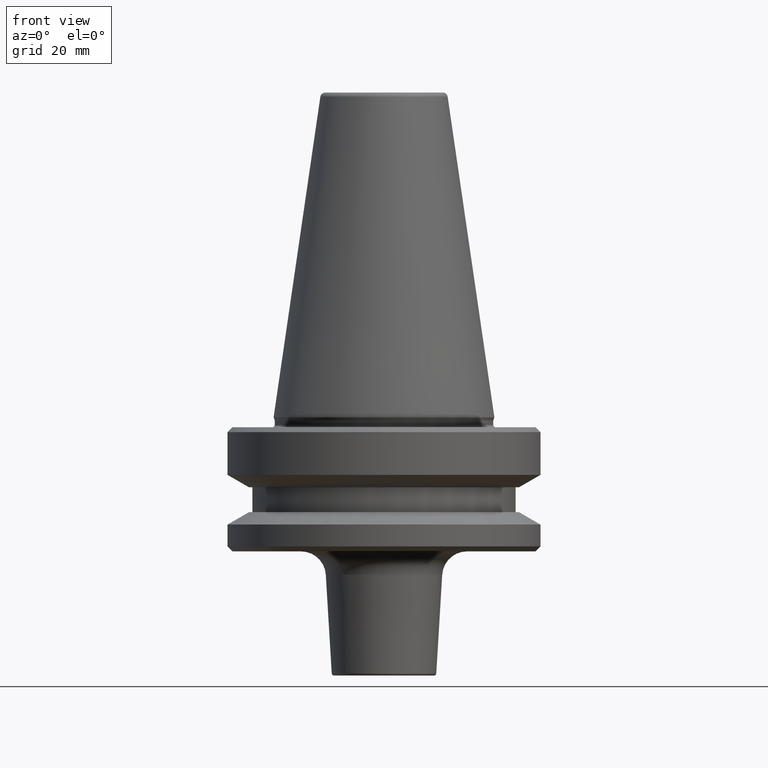
[diagram: clean part render]
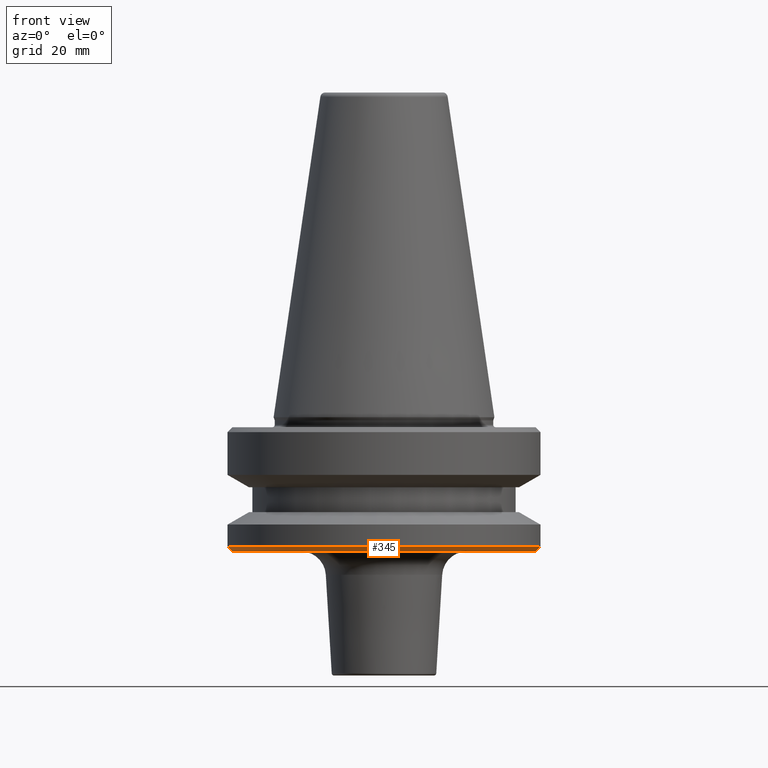
[diagram: same view with one face highlighted and labeled with its STEP entity id]
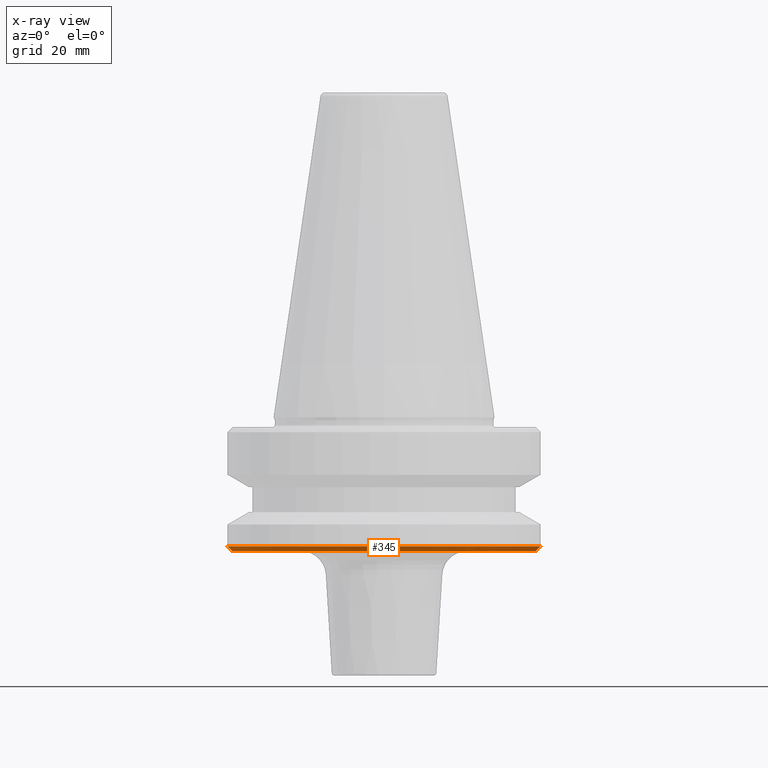
[diagram: x-ray of the same camera — body ghosted, the highlighted face saturated]
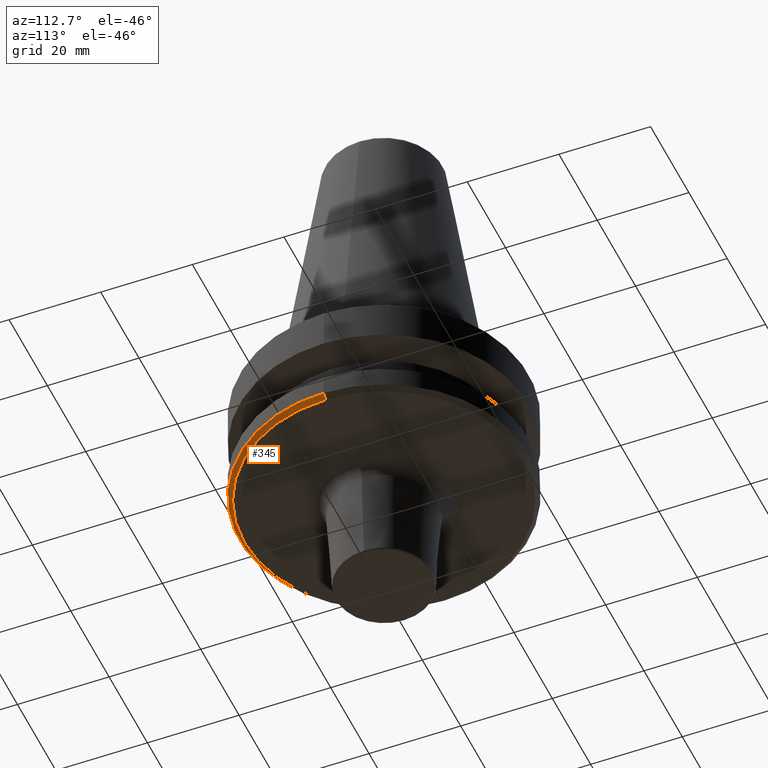
[diagram: same view with one face highlighted and labeled with its STEP entity id]
A machine part, front view. The second image highlights one B-rep face of the part: STEP entity #345.
The next image is the same camera in x-ray: the body ghosted, the highlighted face saturated — about 0% of this face is hidden behind the body in this view.
A second angle (auxiliary view) of the same face is appended — the face is thin or edge-on in the first view.
In plain terms, the highlighted conical surface has half-angle 45 deg.
Its self-contained STEP definition (entity closure, byte-faithful):
#21 = ORIENTED_EDGE ( 'NONE', *, *, #177, .F. ) ;
#106 = EDGE_LOOP ( 'NONE', ( #21, #264, #392, #667 ) ) ;
#128 = CARTESIAN_POINT ( 'NONE',  ( 31.50000000000008500, 0.0000000000000000000, -91.40000000000037500 ) ) ;
#129 = CARTESIAN_POINT ( 'NONE',  ( 31.50000000000008500, 0.0000000000000000000, -91.40000000000037500 ) ) ;
#177 = EDGE_CURVE ( 'NONE', #550, #1015, #981, .T. ) ;
#183 = AXIS2_PLACEMENT_3D ( 'NONE', #769, #689, #291 ) ;
#263 = VERTEX_POINT ( 'NONE', #129 ) ;
#264 = ORIENTED_EDGE ( 'NONE', *, *, #944, .T. ) ;
#291 = DIRECTION ( 'NONE',  ( 1.000000000000000000, 0.0000000000000000000, 0.0000000000000000000 ) ) ;
#345 = ADVANCED_FACE ( 'NONE', ( #1021 ), #486, .T. ) ;
#392 = ORIENTED_EDGE ( 'NONE', *, *, #1018, .T. ) ;
#422 = DIRECTION ( 'NONE',  ( 1.000000000000000000, 0.0000000000000000000, 0.0000000000000000000 ) ) ;
#423 = VECTOR ( 'NONE', #640, 1000.000000000000000 ) ;
#451 = DIRECTION ( 'NONE',  ( -0.0000000000000000000, -0.0000000000000000000, 1.000000000000000000 ) ) ;
#466 = VERTEX_POINT ( 'NONE', #945 ) ;
#486 = CONICAL_SURFACE ( 'NONE', #808, 31.50000000000008500, 0.7853981633974500600 ) ;
#505 = DIRECTION ( 'NONE',  ( -0.0000000000000000000, -0.0000000000000000000, 1.000000000000000000 ) ) ;
#516 = CIRCLE ( 'NONE', #719, 30.49999999999241900 ) ;
#550 = VERTEX_POINT ( 'NONE', #1024 ) ;
#640 = DIRECTION ( 'NONE',  ( 0.7071067811865487900, 0.0000000000000000000, 0.7071067811865463500 ) ) ;
#667 = ORIENTED_EDGE ( 'NONE', *, *, #802, .F. ) ;
#689 = DIRECTION ( 'NONE',  ( -0.0000000000000000000, -0.0000000000000000000, 1.000000000000000000 ) ) ;
#716 = DIRECTION ( 'NONE',  ( -0.7071067811865487900, 8.659560562354948900E-017, 0.7071067811865463500 ) ) ;
#719 = AXIS2_PLACEMENT_3D ( 'NONE', #970, #451, #422 ) ;
#769 = CARTESIAN_POINT ( 'NONE',  ( 0.0000000000000000000, 0.0000000000000000000, -91.40000000000037500 ) ) ;
#773 = VECTOR ( 'NONE', #716, 1000.000000000000000 ) ;
#785 = CARTESIAN_POINT ( 'NONE',  ( -31.50000000000008500, 3.857637417314172900E-015, -91.40000000000037500 ) ) ;
#802 = EDGE_CURVE ( 'NONE', #1015, #263, #1017, .T. ) ;
#808 = AXIS2_PLACEMENT_3D ( 'NONE', #891, #505, #881 ) ;
#868 = LINE ( 'NONE', #128, #423 ) ;
#881 = DIRECTION ( 'NONE',  ( 1.000000000000000000, 0.0000000000000000000, 0.0000000000000000000 ) ) ;
#891 = CARTESIAN_POINT ( 'NONE',  ( 0.0000000000000000000, 0.0000000000000000000, -91.40000000000037500 ) ) ;
#944 = EDGE_CURVE ( 'NONE', #550, #466, #516, .T. ) ;
#945 = CARTESIAN_POINT ( 'NONE',  ( 30.49999999999241900, 0.0000000000000000000, -92.40000000000803500 ) ) ;
#970 = CARTESIAN_POINT ( 'NONE',  ( 0.0000000000000000000, 0.0000000000000000000, -92.40000000000803500 ) ) ;
#981 = LINE ( 'NONE', #785, #773 ) ;
#1015 = VERTEX_POINT ( 'NONE', #1025 ) ;
#1017 = CIRCLE ( 'NONE', #183, 31.50000000000008500 ) ;
#1018 = EDGE_CURVE ( 'NONE', #466, #263, #868, .T. ) ;
#1021 = FACE_OUTER_BOUND ( 'NONE', #106, .T. ) ;
#1024 = CARTESIAN_POINT ( 'NONE',  ( -30.49999999999241900, 3.796405077356336000E-015, -92.40000000000803500 ) ) ;
#1025 = CARTESIAN_POINT ( 'NONE',  ( -31.50000000000008500, 3.857637417314172900E-015, -91.40000000000037500 ) ) ;